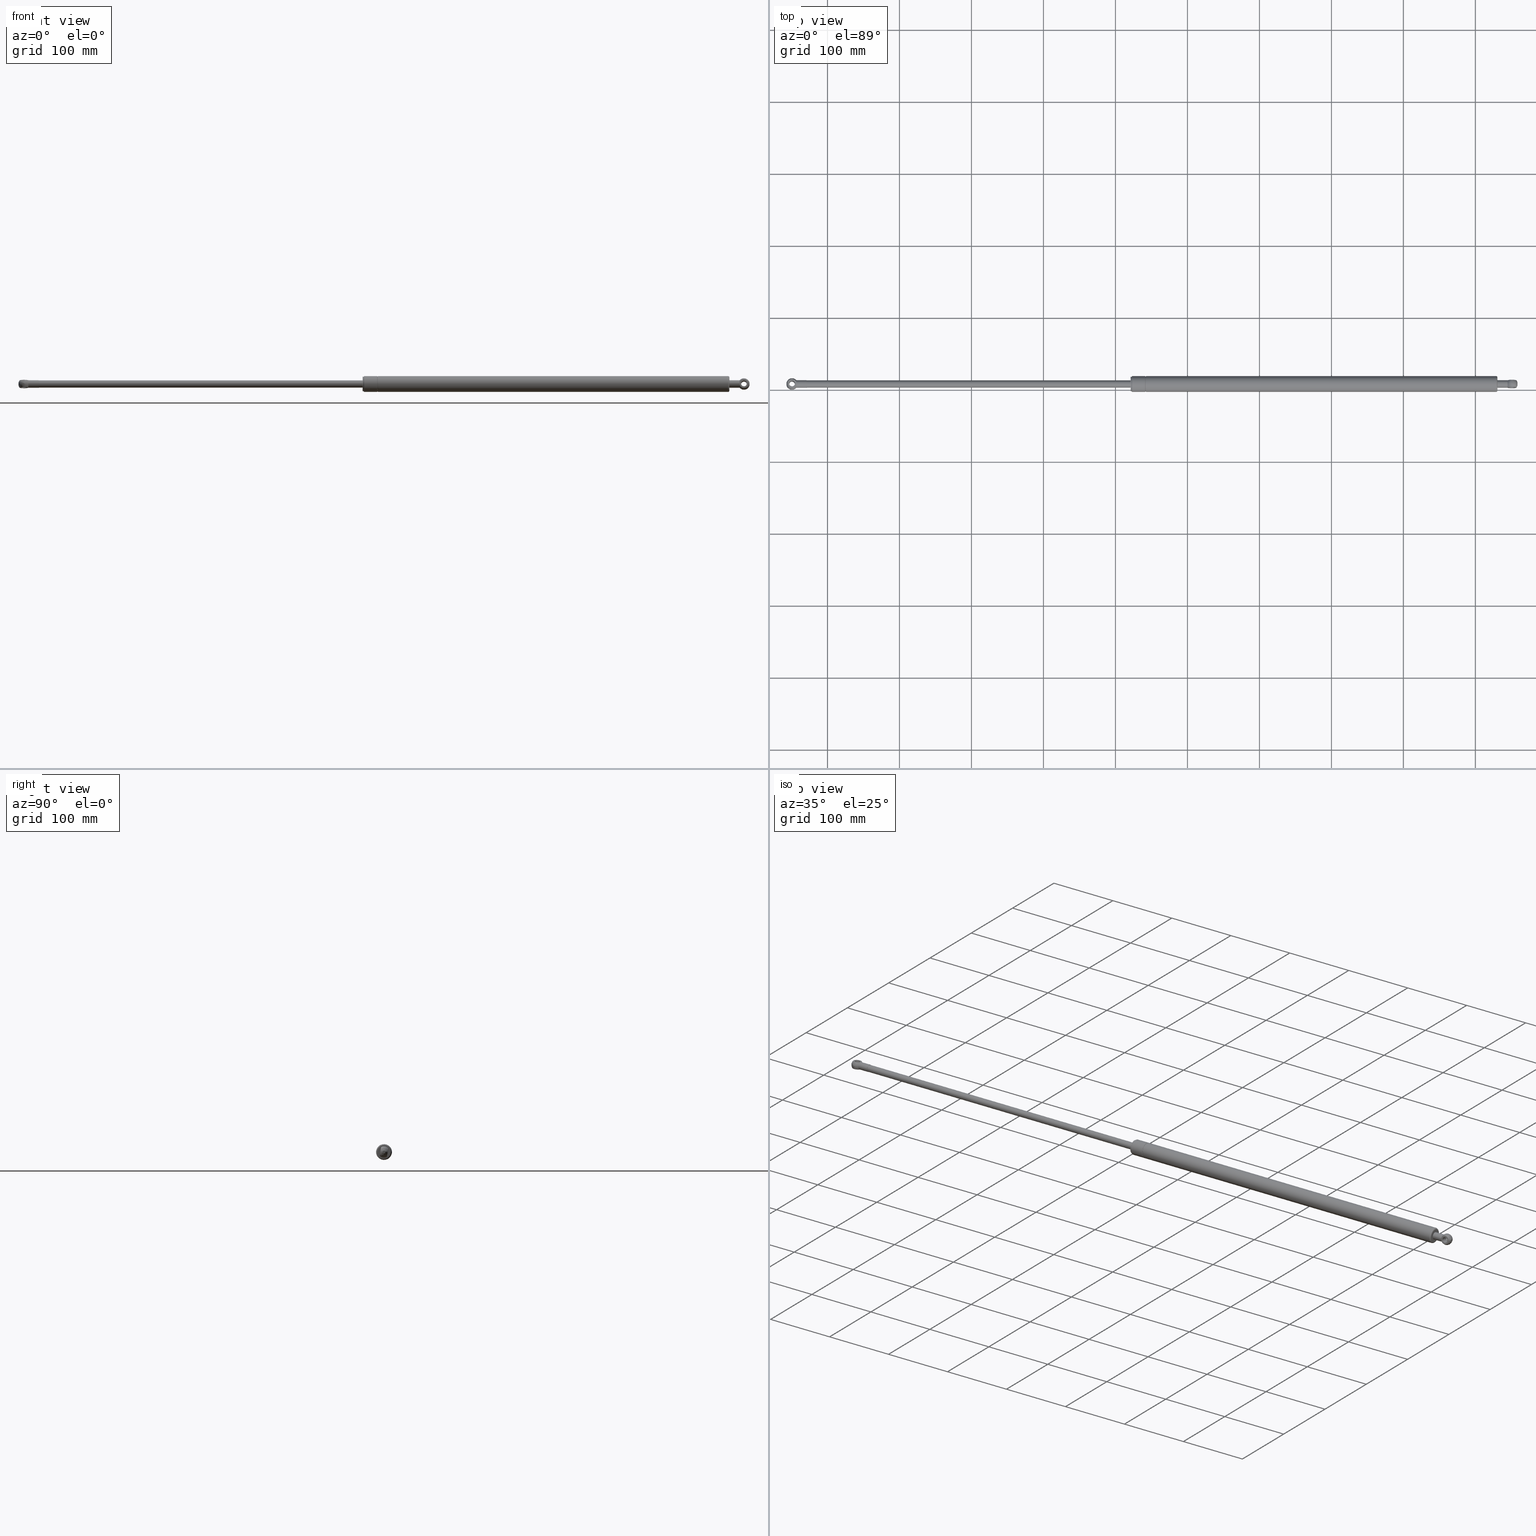
[diagram: canonical four-view strip — front | top / right | iso, engineering-drawing reading convention]
A machine part, canonical four-view strip (front | top / right | iso — engineering-drawing reading convention). The complete STEP part file that produces these views, byte-faithful:
ISO-10303-21;
HEADER;
/* Generated by software containing ST-Developer
 * from STEP Tools, Inc. (www.steptools.com) 
 */

FILE_DESCRIPTION(
/* description */ (''),
/* implementation_level */ '2;1');

FILE_NAME(
/* name */ '\\\\SYNOLOGYNAS\\web\\db2\\SB-1000-H\\\X2\B3C4BA74\X0\\\DR
_SB-1000-H.stp',
/* time_stamp */ '2023-11-29T16:10:18+09:00',
/* author */ ('user'),
/* organization */ (''),
/* preprocessor_version */ 'ST-DEVELOPER v15.6',
/* originating_system */ 'Autodesk Inventor 2015',
/* authorisation */ '');

FILE_SCHEMA (('AUTOMOTIVE_DESIGN { 1 0 10303 214 3 1 1 }'));
ENDSEC;

DATA;
#10=MECHANICAL_DESIGN_GEOMETRIC_PRESENTATION_REPRESENTATION('',(#42,#43,
#44,#45,#49,#47,#48,#46,#50),#857);
#11=ITEM_DEFINED_TRANSFORMATION($,$,#459,#539);
#12=ITEM_DEFINED_TRANSFORMATION($,$,#483,#540);
#13=ITEM_DEFINED_TRANSFORMATION($,$,#509,#541);
#14=ITEM_DEFINED_TRANSFORMATION($,$,#459,#542);
#15=ITEM_DEFINED_TRANSFORMATION($,$,#525,#543);
#16=(
REPRESENTATION_RELATIONSHIP($,$,#879,#883)
REPRESENTATION_RELATIONSHIP_WITH_TRANSFORMATION(#11)
SHAPE_REPRESENTATION_RELATIONSHIP()
);
#17=(
REPRESENTATION_RELATIONSHIP($,$,#880,#883)
REPRESENTATION_RELATIONSHIP_WITH_TRANSFORMATION(#12)
SHAPE_REPRESENTATION_RELATIONSHIP()
);
#18=(
REPRESENTATION_RELATIONSHIP($,$,#881,#883)
REPRESENTATION_RELATIONSHIP_WITH_TRANSFORMATION(#13)
SHAPE_REPRESENTATION_RELATIONSHIP()
);
#19=(
REPRESENTATION_RELATIONSHIP($,$,#879,#883)
REPRESENTATION_RELATIONSHIP_WITH_TRANSFORMATION(#14)
SHAPE_REPRESENTATION_RELATIONSHIP()
);
#20=(
REPRESENTATION_RELATIONSHIP($,$,#882,#883)
REPRESENTATION_RELATIONSHIP_WITH_TRANSFORMATION(#15)
SHAPE_REPRESENTATION_RELATIONSHIP()
);
#21=CONTEXT_DEPENDENT_SHAPE_REPRESENTATION(#16,#874);
#22=CONTEXT_DEPENDENT_SHAPE_REPRESENTATION(#17,#875);
#23=CONTEXT_DEPENDENT_SHAPE_REPRESENTATION(#18,#876);
#24=CONTEXT_DEPENDENT_SHAPE_REPRESENTATION(#19,#877);
#25=CONTEXT_DEPENDENT_SHAPE_REPRESENTATION(#20,#878);
#26=NEXT_ASSEMBLY_USAGE_OCCURRENCE('DR_SB-1000-H HOLE:2',$,$,#889,#885,
$);
#27=NEXT_ASSEMBLY_USAGE_OCCURRENCE('DR_SB-1000-BASE:1',$,$,#889,#886,$);
#28=NEXT_ASSEMBLY_USAGE_OCCURRENCE('DR_SB-1000-SUPPORT:1',$,$,#889,#887,
$);
#29=NEXT_ASSEMBLY_USAGE_OCCURRENCE('DR_SB-1000-H HOLE:1',$,$,#889,#885,
$);
#30=NEXT_ASSEMBLY_USAGE_OCCURRENCE('DR_SB-1000-RING:1',$,$,#889,#888,$);
#31=TOROIDAL_SURFACE('',#490,11.,0.5);
#32=TOROIDAL_SURFACE('',#493,11.,1.);
#33=TOROIDAL_SURFACE('',#498,9.00000000000001,2.);
#34=SHAPE_REPRESENTATION_RELATIONSHIP('SRR','None',#879,#38);
#35=SHAPE_REPRESENTATION_RELATIONSHIP('SRR','None',#880,#39);
#36=SHAPE_REPRESENTATION_RELATIONSHIP('SRR','None',#881,#40);
#37=SHAPE_REPRESENTATION_RELATIONSHIP('SRR','None',#882,#41);
#38=ADVANCED_BREP_SHAPE_REPRESENTATION($,(#51),#852);
#39=ADVANCED_BREP_SHAPE_REPRESENTATION($,(#52),#853);
#40=ADVANCED_BREP_SHAPE_REPRESENTATION($,(#53),#854);
#41=ADVANCED_BREP_SHAPE_REPRESENTATION($,(#54),#855);
#42=STYLED_ITEM('',(#908),#51);
#43=STYLED_ITEM('',(#909),#52);
#44=STYLED_ITEM('',(#911),#444);
#45=STYLED_ITEM('',(#911),#445);
#46=STYLED_ITEM('',(#911),#446);
#47=STYLED_ITEM('',(#910),#53);
#48=STYLED_ITEM('',(#909),#450);
#49=STYLED_ITEM('',(#909),#451);
#50=STYLED_ITEM('',(#910),#54);
#51=MANIFOLD_SOLID_BREP('\X2\C194B9ACB4DC\X0\1',#455);
#52=MANIFOLD_SOLID_BREP('\X2\C194B9ACB4DC\X0\1',#456);
#53=MANIFOLD_SOLID_BREP('\X2\C194B9ACB4DC\X0\1',#457);
#54=MANIFOLD_SOLID_BREP('\X2\C194B9ACB4DC\X0\1',#458);
#55=SPHERICAL_SURFACE('',#478,8.);
#56=B_SPLINE_CURVE_WITH_KNOTS('',3,(#727,#728,#729,#730,#731,#732),
 .UNSPECIFIED.,.F.,.F.,(4,2,4),(2.41667495412591,2.57738882372164,2.73810269331737),
 .UNSPECIFIED.);
#57=B_SPLINE_CURVE_WITH_KNOTS('',3,(#737,#738,#739,#740,#741,#742),
 .UNSPECIFIED.,.F.,.F.,(4,2,4),(0.698415738311486,0.859129607907215,1.01984347750294),
 .UNSPECIFIED.);
#58=PLANE('',#464);
#59=PLANE('',#477);
#60=PLANE('',#481);
#61=PLANE('',#482);
#62=PLANE('',#487);
#63=PLANE('',#501);
#64=PLANE('',#506);
#65=PLANE('',#508);
#66=PLANE('',#515);
#67=PLANE('',#516);
#68=PLANE('',#519);
#69=PLANE('',#524);
#70=PLANE('',#529);
#71=PLANE('',#533);
#72=PLANE('',#537);
#73=FACE_BOUND('',#159,.T.);
#74=FACE_BOUND('',#164,.T.);
#75=FACE_BOUND('',#166,.T.);
#76=FACE_BOUND('',#168,.T.);
#77=FACE_BOUND('',#169,.T.);
#78=FACE_BOUND('',#170,.T.);
#79=FACE_BOUND('',#172,.T.);
#80=FACE_BOUND('',#174,.T.);
#81=FACE_BOUND('',#176,.T.);
#82=FACE_BOUND('',#179,.T.);
#83=FACE_BOUND('',#181,.T.);
#84=FACE_BOUND('',#183,.T.);
#85=FACE_BOUND('',#185,.T.);
#86=FACE_BOUND('',#187,.T.);
#87=FACE_BOUND('',#189,.T.);
#88=FACE_BOUND('',#191,.T.);
#89=FACE_BOUND('',#193,.T.);
#90=FACE_BOUND('',#196,.T.);
#91=FACE_BOUND('',#198,.T.);
#92=FACE_BOUND('',#200,.T.);
#93=FACE_BOUND('',#202,.T.);
#94=FACE_BOUND('',#205,.T.);
#95=FACE_BOUND('',#208,.T.);
#96=FACE_BOUND('',#210,.T.);
#97=FACE_BOUND('',#212,.T.);
#98=FACE_BOUND('',#214,.T.);
#99=FACE_BOUND('',#216,.T.);
#100=FACE_BOUND('',#218,.T.);
#101=FACE_BOUND('',#220,.T.);
#102=FACE_BOUND('',#222,.T.);
#103=FACE_BOUND('',#224,.T.);
#104=CYLINDRICAL_SURFACE('',#462,3.567);
#105=CYLINDRICAL_SURFACE('',#466,6.2449979983984);
#106=CYLINDRICAL_SURFACE('',#468,6.2449979983984);
#107=CYLINDRICAL_SURFACE('',#470,5.25);
#108=CYLINDRICAL_SURFACE('',#474,4.);
#109=CYLINDRICAL_SURFACE('',#488,4.);
#110=CYLINDRICAL_SURFACE('',#496,10.);
#111=CYLINDRICAL_SURFACE('',#502,11.);
#112=CYLINDRICAL_SURFACE('',#503,9.);
#113=CYLINDRICAL_SURFACE('',#507,11.);
#114=CYLINDRICAL_SURFACE('',#513,4.);
#115=CYLINDRICAL_SURFACE('',#521,8.99999999999996);
#116=CYLINDRICAL_SURFACE('',#522,5.00000000000002);
#117=CYLINDRICAL_SURFACE('',#526,9.);
#118=CYLINDRICAL_SURFACE('',#531,6.5);
#119=CYLINDRICAL_SURFACE('',#535,5.);
#120=FACE_OUTER_BOUND('',#157,.T.);
#121=FACE_OUTER_BOUND('',#158,.T.);
#122=FACE_OUTER_BOUND('',#160,.T.);
#123=FACE_OUTER_BOUND('',#161,.T.);
#124=FACE_OUTER_BOUND('',#162,.T.);
#125=FACE_OUTER_BOUND('',#163,.T.);
#126=FACE_OUTER_BOUND('',#165,.T.);
#127=FACE_OUTER_BOUND('',#167,.T.);
#128=FACE_OUTER_BOUND('',#171,.T.);
#129=FACE_OUTER_BOUND('',#173,.T.);
#130=FACE_OUTER_BOUND('',#175,.T.);
#131=FACE_OUTER_BOUND('',#177,.T.);
#132=FACE_OUTER_BOUND('',#178,.T.);
#133=FACE_OUTER_BOUND('',#180,.T.);
#134=FACE_OUTER_BOUND('',#182,.T.);
#135=FACE_OUTER_BOUND('',#184,.T.);
#136=FACE_OUTER_BOUND('',#186,.T.);
#137=FACE_OUTER_BOUND('',#188,.T.);
#138=FACE_OUTER_BOUND('',#190,.T.);
#139=FACE_OUTER_BOUND('',#192,.T.);
#140=FACE_OUTER_BOUND('',#194,.T.);
#141=FACE_OUTER_BOUND('',#195,.T.);
#142=FACE_OUTER_BOUND('',#197,.T.);
#143=FACE_OUTER_BOUND('',#199,.T.);
#144=FACE_OUTER_BOUND('',#201,.T.);
#145=FACE_OUTER_BOUND('',#203,.T.);
#146=FACE_OUTER_BOUND('',#204,.T.);
#147=FACE_OUTER_BOUND('',#206,.T.);
#148=FACE_OUTER_BOUND('',#207,.T.);
#149=FACE_OUTER_BOUND('',#209,.T.);
#150=FACE_OUTER_BOUND('',#211,.T.);
#151=FACE_OUTER_BOUND('',#213,.T.);
#152=FACE_OUTER_BOUND('',#215,.T.);
#153=FACE_OUTER_BOUND('',#217,.T.);
#154=FACE_OUTER_BOUND('',#219,.T.);
#155=FACE_OUTER_BOUND('',#221,.T.);
#156=FACE_OUTER_BOUND('',#223,.T.);
#157=EDGE_LOOP('',(#336));
#158=EDGE_LOOP('',(#337));
#159=EDGE_LOOP('',(#338));
#160=EDGE_LOOP('',(#339));
#161=EDGE_LOOP('',(#340,#341));
#162=EDGE_LOOP('',(#342,#343));
#163=EDGE_LOOP('',(#344,#345,#346,#347));
#164=EDGE_LOOP('',(#348));
#165=EDGE_LOOP('',(#349));
#166=EDGE_LOOP('',(#350));
#167=EDGE_LOOP('',(#351));
#168=EDGE_LOOP('',(#352));
#169=EDGE_LOOP('',(#353));
#170=EDGE_LOOP('',(#354,#355,#356,#357));
#171=EDGE_LOOP('',(#358,#359));
#172=EDGE_LOOP('',(#360));
#173=EDGE_LOOP('',(#361,#362));
#174=EDGE_LOOP('',(#363));
#175=EDGE_LOOP('',(#364));
#176=EDGE_LOOP('',(#365));
#177=EDGE_LOOP('',(#366));
#178=EDGE_LOOP('',(#367));
#179=EDGE_LOOP('',(#368));
#180=EDGE_LOOP('',(#369));
#181=EDGE_LOOP('',(#370));
#182=EDGE_LOOP('',(#371));
#183=EDGE_LOOP('',(#372));
#184=EDGE_LOOP('',(#373));
#185=EDGE_LOOP('',(#374));
#186=EDGE_LOOP('',(#375));
#187=EDGE_LOOP('',(#376));
#188=EDGE_LOOP('',(#377));
#189=EDGE_LOOP('',(#378));
#190=EDGE_LOOP('',(#379));
#191=EDGE_LOOP('',(#380));
#192=EDGE_LOOP('',(#381));
#193=EDGE_LOOP('',(#382));
#194=EDGE_LOOP('',(#383));
#195=EDGE_LOOP('',(#384));
#196=EDGE_LOOP('',(#385));
#197=EDGE_LOOP('',(#386));
#198=EDGE_LOOP('',(#387));
#199=EDGE_LOOP('',(#388));
#200=EDGE_LOOP('',(#389));
#201=EDGE_LOOP('',(#390));
#202=EDGE_LOOP('',(#391));
#203=EDGE_LOOP('',(#392));
#204=EDGE_LOOP('',(#393));
#205=EDGE_LOOP('',(#394));
#206=EDGE_LOOP('',(#395));
#207=EDGE_LOOP('',(#396));
#208=EDGE_LOOP('',(#397));
#209=EDGE_LOOP('',(#398));
#210=EDGE_LOOP('',(#399));
#211=EDGE_LOOP('',(#400));
#212=EDGE_LOOP('',(#401));
#213=EDGE_LOOP('',(#402));
#214=EDGE_LOOP('',(#403));
#215=EDGE_LOOP('',(#404));
#216=EDGE_LOOP('',(#405));
#217=EDGE_LOOP('',(#406));
#218=EDGE_LOOP('',(#407));
#219=EDGE_LOOP('',(#408));
#220=EDGE_LOOP('',(#409));
#221=EDGE_LOOP('',(#410));
#222=EDGE_LOOP('',(#411));
#223=EDGE_LOOP('',(#412));
#224=EDGE_LOOP('',(#413));
#225=CIRCLE('',#461,3.567);
#226=CIRCLE('',#463,3.567);
#227=CIRCLE('',#465,1.98431348329845);
#228=CIRCLE('',#467,6.2449979983984);
#229=CIRCLE('',#469,6.2449979983984);
#230=CIRCLE('',#471,5.25);
#231=CIRCLE('',#472,5.25);
#232=CIRCLE('',#473,5.25);
#233=CIRCLE('',#475,4.);
#234=CIRCLE('',#476,4.);
#235=CIRCLE('',#479,6.2449979983984);
#236=CIRCLE('',#480,6.2449979983984);
#237=CIRCLE('',#485,3.);
#238=CIRCLE('',#486,4.);
#239=CIRCLE('',#489,4.);
#240=CIRCLE('',#491,11.);
#241=CIRCLE('',#492,11.);
#242=CIRCLE('',#494,11.);
#243=CIRCLE('',#495,10.);
#244=CIRCLE('',#497,10.);
#245=CIRCLE('',#499,9.00000000000001);
#246=CIRCLE('',#500,11.);
#247=CIRCLE('',#504,9.);
#248=CIRCLE('',#505,9.);
#249=CIRCLE('',#511,4.);
#250=CIRCLE('',#512,3.);
#251=CIRCLE('',#514,4.);
#252=CIRCLE('',#517,8.99999999999988);
#253=CIRCLE('',#518,5.);
#254=CIRCLE('',#520,9.00000000000005);
#255=CIRCLE('',#523,5.00000000000003);
#256=CIRCLE('',#527,9.);
#257=CIRCLE('',#528,9.);
#258=CIRCLE('',#530,6.5);
#259=CIRCLE('',#532,6.5);
#260=CIRCLE('',#534,5.);
#261=CIRCLE('',#536,5.);
#262=VERTEX_POINT('',#716);
#263=VERTEX_POINT('',#719);
#264=VERTEX_POINT('',#722);
#265=VERTEX_POINT('',#725);
#266=VERTEX_POINT('',#726);
#267=VERTEX_POINT('',#735);
#268=VERTEX_POINT('',#736);
#269=VERTEX_POINT('',#747);
#270=VERTEX_POINT('',#750);
#271=VERTEX_POINT('',#752);
#272=VERTEX_POINT('',#762);
#273=VERTEX_POINT('',#764);
#274=VERTEX_POINT('',#768);
#275=VERTEX_POINT('',#771);
#276=VERTEX_POINT('',#773);
#277=VERTEX_POINT('',#776);
#278=VERTEX_POINT('',#778);
#279=VERTEX_POINT('',#781);
#280=VERTEX_POINT('',#784);
#281=VERTEX_POINT('',#786);
#282=VERTEX_POINT('',#791);
#283=VERTEX_POINT('',#793);
#284=VERTEX_POINT('',#800);
#285=VERTEX_POINT('',#802);
#286=VERTEX_POINT('',#805);
#287=VERTEX_POINT('',#809);
#288=VERTEX_POINT('',#811);
#289=VERTEX_POINT('',#814);
#290=VERTEX_POINT('',#818);
#291=VERTEX_POINT('',#823);
#292=VERTEX_POINT('',#825);
#293=VERTEX_POINT('',#828);
#294=VERTEX_POINT('',#831);
#295=VERTEX_POINT('',#834);
#296=VERTEX_POINT('',#837);
#297=EDGE_CURVE('',#262,#262,#225,.T.);
#298=EDGE_CURVE('',#263,#263,#226,.T.);
#299=EDGE_CURVE('',#264,#264,#227,.T.);
#300=EDGE_CURVE('',#265,#266,#56,.T.);
#301=EDGE_CURVE('',#265,#266,#228,.T.);
#302=EDGE_CURVE('',#267,#268,#57,.T.);
#303=EDGE_CURVE('',#267,#268,#229,.T.);
#304=EDGE_CURVE('',#267,#266,#230,.T.);
#305=EDGE_CURVE('',#265,#268,#231,.T.);
#306=EDGE_CURVE('',#269,#269,#232,.T.);
#307=EDGE_CURVE('',#270,#270,#233,.T.);
#308=EDGE_CURVE('',#271,#271,#234,.T.);
#309=EDGE_CURVE('',#266,#265,#235,.T.);
#310=EDGE_CURVE('',#268,#267,#236,.T.);
#311=EDGE_CURVE('',#272,#272,#237,.T.);
#312=EDGE_CURVE('',#273,#273,#238,.T.);
#313=EDGE_CURVE('',#274,#274,#239,.T.);
#314=EDGE_CURVE('',#275,#275,#240,.T.);
#315=EDGE_CURVE('',#276,#276,#241,.T.);
#316=EDGE_CURVE('',#277,#277,#242,.T.);
#317=EDGE_CURVE('',#278,#278,#243,.T.);
#318=EDGE_CURVE('',#279,#279,#244,.T.);
#319=EDGE_CURVE('',#280,#280,#245,.T.);
#320=EDGE_CURVE('',#281,#281,#246,.T.);
#321=EDGE_CURVE('',#282,#282,#247,.T.);
#322=EDGE_CURVE('',#283,#283,#248,.T.);
#323=EDGE_CURVE('',#284,#284,#249,.T.);
#324=EDGE_CURVE('',#285,#285,#250,.T.);
#325=EDGE_CURVE('',#286,#286,#251,.T.);
#326=EDGE_CURVE('',#287,#287,#252,.T.);
#327=EDGE_CURVE('',#288,#288,#253,.T.);
#328=EDGE_CURVE('',#289,#289,#254,.T.);
#329=EDGE_CURVE('',#290,#290,#255,.T.);
#330=EDGE_CURVE('',#291,#291,#256,.T.);
#331=EDGE_CURVE('',#292,#292,#257,.T.);
#332=EDGE_CURVE('',#293,#293,#258,.T.);
#333=EDGE_CURVE('',#294,#294,#259,.T.);
#334=EDGE_CURVE('',#295,#295,#260,.T.);
#335=EDGE_CURVE('',#296,#296,#261,.T.);
#336=ORIENTED_EDGE('',*,*,#297,.T.);
#337=ORIENTED_EDGE('',*,*,#298,.F.);
#338=ORIENTED_EDGE('',*,*,#297,.F.);
#339=ORIENTED_EDGE('',*,*,#299,.F.);
#340=ORIENTED_EDGE('',*,*,#300,.F.);
#341=ORIENTED_EDGE('',*,*,#301,.T.);
#342=ORIENTED_EDGE('',*,*,#302,.F.);
#343=ORIENTED_EDGE('',*,*,#303,.T.);
#344=ORIENTED_EDGE('',*,*,#300,.T.);
#345=ORIENTED_EDGE('',*,*,#304,.F.);
#346=ORIENTED_EDGE('',*,*,#302,.T.);
#347=ORIENTED_EDGE('',*,*,#305,.F.);
#348=ORIENTED_EDGE('',*,*,#306,.F.);
#349=ORIENTED_EDGE('',*,*,#307,.F.);
#350=ORIENTED_EDGE('',*,*,#308,.F.);
#351=ORIENTED_EDGE('',*,*,#306,.T.);
#352=ORIENTED_EDGE('',*,*,#298,.T.);
#353=ORIENTED_EDGE('',*,*,#299,.T.);
#354=ORIENTED_EDGE('',*,*,#304,.T.);
#355=ORIENTED_EDGE('',*,*,#309,.T.);
#356=ORIENTED_EDGE('',*,*,#305,.T.);
#357=ORIENTED_EDGE('',*,*,#310,.T.);
#358=ORIENTED_EDGE('',*,*,#309,.F.);
#359=ORIENTED_EDGE('',*,*,#301,.F.);
#360=ORIENTED_EDGE('',*,*,#307,.T.);
#361=ORIENTED_EDGE('',*,*,#310,.F.);
#362=ORIENTED_EDGE('',*,*,#303,.F.);
#363=ORIENTED_EDGE('',*,*,#308,.T.);
#364=ORIENTED_EDGE('',*,*,#311,.T.);
#365=ORIENTED_EDGE('',*,*,#312,.T.);
#366=ORIENTED_EDGE('',*,*,#311,.F.);
#367=ORIENTED_EDGE('',*,*,#313,.F.);
#368=ORIENTED_EDGE('',*,*,#312,.F.);
#369=ORIENTED_EDGE('',*,*,#314,.T.);
#370=ORIENTED_EDGE('',*,*,#315,.F.);
#371=ORIENTED_EDGE('',*,*,#316,.T.);
#372=ORIENTED_EDGE('',*,*,#317,.T.);
#373=ORIENTED_EDGE('',*,*,#318,.F.);
#374=ORIENTED_EDGE('',*,*,#317,.F.);
#375=ORIENTED_EDGE('',*,*,#319,.T.);
#376=ORIENTED_EDGE('',*,*,#320,.T.);
#377=ORIENTED_EDGE('',*,*,#319,.F.);
#378=ORIENTED_EDGE('',*,*,#313,.T.);
#379=ORIENTED_EDGE('',*,*,#314,.F.);
#380=ORIENTED_EDGE('',*,*,#320,.F.);
#381=ORIENTED_EDGE('',*,*,#321,.F.);
#382=ORIENTED_EDGE('',*,*,#322,.F.);
#383=ORIENTED_EDGE('',*,*,#322,.T.);
#384=ORIENTED_EDGE('',*,*,#316,.F.);
#385=ORIENTED_EDGE('',*,*,#315,.T.);
#386=ORIENTED_EDGE('',*,*,#318,.T.);
#387=ORIENTED_EDGE('',*,*,#321,.T.);
#388=ORIENTED_EDGE('',*,*,#323,.T.);
#389=ORIENTED_EDGE('',*,*,#324,.T.);
#390=ORIENTED_EDGE('',*,*,#325,.F.);
#391=ORIENTED_EDGE('',*,*,#323,.F.);
#392=ORIENTED_EDGE('',*,*,#324,.F.);
#393=ORIENTED_EDGE('',*,*,#326,.T.);
#394=ORIENTED_EDGE('',*,*,#327,.F.);
#395=ORIENTED_EDGE('',*,*,#328,.F.);
#396=ORIENTED_EDGE('',*,*,#326,.F.);
#397=ORIENTED_EDGE('',*,*,#328,.T.);
#398=ORIENTED_EDGE('',*,*,#329,.F.);
#399=ORIENTED_EDGE('',*,*,#327,.T.);
#400=ORIENTED_EDGE('',*,*,#329,.T.);
#401=ORIENTED_EDGE('',*,*,#325,.T.);
#402=ORIENTED_EDGE('',*,*,#330,.F.);
#403=ORIENTED_EDGE('',*,*,#331,.T.);
#404=ORIENTED_EDGE('',*,*,#330,.T.);
#405=ORIENTED_EDGE('',*,*,#332,.F.);
#406=ORIENTED_EDGE('',*,*,#333,.F.);
#407=ORIENTED_EDGE('',*,*,#332,.T.);
#408=ORIENTED_EDGE('',*,*,#333,.T.);
#409=ORIENTED_EDGE('',*,*,#334,.F.);
#410=ORIENTED_EDGE('',*,*,#335,.F.);
#411=ORIENTED_EDGE('',*,*,#334,.T.);
#412=ORIENTED_EDGE('',*,*,#331,.F.);
#413=ORIENTED_EDGE('',*,*,#335,.T.);
#414=CONICAL_SURFACE('',#460,1.7835,59.);
#415=CONICAL_SURFACE('',#484,3.5,44.9999999999996);
#416=CONICAL_SURFACE('',#510,3.5,45.);
#417=ADVANCED_FACE('',(#120),#414,.F.);
#418=ADVANCED_FACE('',(#121,#73),#104,.F.);
#419=ADVANCED_FACE('',(#122),#58,.F.);
#420=ADVANCED_FACE('',(#123),#105,.F.);
#421=ADVANCED_FACE('',(#124),#106,.F.);
#422=ADVANCED_FACE('',(#125,#74),#107,.T.);
#423=ADVANCED_FACE('',(#126,#75),#108,.F.);
#424=ADVANCED_FACE('',(#127,#76),#59,.F.);
#425=ADVANCED_FACE('',(#77,#78),#55,.T.);
#426=ADVANCED_FACE('',(#128,#79),#60,.F.);
#427=ADVANCED_FACE('',(#129,#80),#61,.F.);
#428=ADVANCED_FACE('',(#130,#81),#415,.T.);
#429=ADVANCED_FACE('',(#131),#62,.T.);
#430=ADVANCED_FACE('',(#132,#82),#109,.T.);
#431=ADVANCED_FACE('',(#133,#83),#31,.F.);
#432=ADVANCED_FACE('',(#134,#84),#32,.F.);
#433=ADVANCED_FACE('',(#135,#85),#110,.T.);
#434=ADVANCED_FACE('',(#136,#86),#33,.T.);
#435=ADVANCED_FACE('',(#137,#87),#63,.T.);
#436=ADVANCED_FACE('',(#138,#88),#111,.T.);
#437=ADVANCED_FACE('',(#139,#89),#112,.F.);
#438=ADVANCED_FACE('',(#140),#64,.T.);
#439=ADVANCED_FACE('',(#141,#90),#113,.T.);
#440=ADVANCED_FACE('',(#142,#91),#65,.T.);
#441=ADVANCED_FACE('',(#143,#92),#416,.T.);
#442=ADVANCED_FACE('',(#144,#93),#114,.T.);
#443=ADVANCED_FACE('',(#145),#66,.F.);
#444=ADVANCED_FACE('',(#146,#94),#67,.T.);
#445=ADVANCED_FACE('',(#147),#68,.T.);
#446=ADVANCED_FACE('',(#148,#95),#115,.T.);
#447=ADVANCED_FACE('',(#149,#96),#116,.T.);
#448=ADVANCED_FACE('',(#150,#97),#69,.T.);
#449=ADVANCED_FACE('',(#151,#98),#117,.T.);
#450=ADVANCED_FACE('',(#152,#99),#70,.T.);
#451=ADVANCED_FACE('',(#153,#100),#118,.F.);
#452=ADVANCED_FACE('',(#154,#101),#71,.T.);
#453=ADVANCED_FACE('',(#155,#102),#119,.F.);
#454=ADVANCED_FACE('',(#156,#103),#72,.T.);
#455=CLOSED_SHELL('',(#417,#418,#419,#420,#421,#422,#423,#424,#425,#426,
#427));
#456=CLOSED_SHELL('',(#428,#429,#430,#431,#432,#433,#434,#435,#436,#437,
#438,#439,#440));
#457=CLOSED_SHELL('',(#441,#442,#443,#444,#445,#446,#447,#448));
#458=CLOSED_SHELL('',(#449,#450,#451,#452,#453,#454));
#459=AXIS2_PLACEMENT_3D('placement',#714,#544,#545);
#460=AXIS2_PLACEMENT_3D('',#715,#546,#547);
#461=AXIS2_PLACEMENT_3D('',#717,#548,#549);
#462=AXIS2_PLACEMENT_3D('',#718,#550,#551);
#463=AXIS2_PLACEMENT_3D('',#720,#552,#553);
#464=AXIS2_PLACEMENT_3D('',#721,#554,#555);
#465=AXIS2_PLACEMENT_3D('',#723,#556,#557);
#466=AXIS2_PLACEMENT_3D('',#724,#558,#559);
#467=AXIS2_PLACEMENT_3D('',#733,#560,#561);
#468=AXIS2_PLACEMENT_3D('',#734,#562,#563);
#469=AXIS2_PLACEMENT_3D('',#743,#564,#565);
#470=AXIS2_PLACEMENT_3D('',#744,#566,#567);
#471=AXIS2_PLACEMENT_3D('',#745,#568,#569);
#472=AXIS2_PLACEMENT_3D('',#746,#570,#571);
#473=AXIS2_PLACEMENT_3D('',#748,#572,#573);
#474=AXIS2_PLACEMENT_3D('',#749,#574,#575);
#475=AXIS2_PLACEMENT_3D('',#751,#576,#577);
#476=AXIS2_PLACEMENT_3D('',#753,#578,#579);
#477=AXIS2_PLACEMENT_3D('',#754,#580,#581);
#478=AXIS2_PLACEMENT_3D('',#755,#582,#583);
#479=AXIS2_PLACEMENT_3D('',#756,#584,#585);
#480=AXIS2_PLACEMENT_3D('',#757,#586,#587);
#481=AXIS2_PLACEMENT_3D('',#758,#588,#589);
#482=AXIS2_PLACEMENT_3D('',#759,#590,#591);
#483=AXIS2_PLACEMENT_3D('placement',#760,#592,#593);
#484=AXIS2_PLACEMENT_3D('',#761,#594,#595);
#485=AXIS2_PLACEMENT_3D('',#763,#596,#597);
#486=AXIS2_PLACEMENT_3D('',#765,#598,#599);
#487=AXIS2_PLACEMENT_3D('',#766,#600,#601);
#488=AXIS2_PLACEMENT_3D('',#767,#602,#603);
#489=AXIS2_PLACEMENT_3D('',#769,#604,#605);
#490=AXIS2_PLACEMENT_3D('',#770,#606,#607);
#491=AXIS2_PLACEMENT_3D('',#772,#608,#609);
#492=AXIS2_PLACEMENT_3D('',#774,#610,#611);
#493=AXIS2_PLACEMENT_3D('',#775,#612,#613);
#494=AXIS2_PLACEMENT_3D('',#777,#614,#615);
#495=AXIS2_PLACEMENT_3D('',#779,#616,#617);
#496=AXIS2_PLACEMENT_3D('',#780,#618,#619);
#497=AXIS2_PLACEMENT_3D('',#782,#620,#621);
#498=AXIS2_PLACEMENT_3D('',#783,#622,#623);
#499=AXIS2_PLACEMENT_3D('',#785,#624,#625);
#500=AXIS2_PLACEMENT_3D('',#787,#626,#627);
#501=AXIS2_PLACEMENT_3D('',#788,#628,#629);
#502=AXIS2_PLACEMENT_3D('',#789,#630,#631);
#503=AXIS2_PLACEMENT_3D('',#790,#632,#633);
#504=AXIS2_PLACEMENT_3D('',#792,#634,#635);
#505=AXIS2_PLACEMENT_3D('',#794,#636,#637);
#506=AXIS2_PLACEMENT_3D('',#795,#638,#639);
#507=AXIS2_PLACEMENT_3D('',#796,#640,#641);
#508=AXIS2_PLACEMENT_3D('',#797,#642,#643);
#509=AXIS2_PLACEMENT_3D('placement',#798,#644,#645);
#510=AXIS2_PLACEMENT_3D('',#799,#646,#647);
#511=AXIS2_PLACEMENT_3D('',#801,#648,#649);
#512=AXIS2_PLACEMENT_3D('',#803,#650,#651);
#513=AXIS2_PLACEMENT_3D('',#804,#652,#653);
#514=AXIS2_PLACEMENT_3D('',#806,#654,#655);
#515=AXIS2_PLACEMENT_3D('',#807,#656,#657);
#516=AXIS2_PLACEMENT_3D('',#808,#658,#659);
#517=AXIS2_PLACEMENT_3D('',#810,#660,#661);
#518=AXIS2_PLACEMENT_3D('',#812,#662,#663);
#519=AXIS2_PLACEMENT_3D('',#813,#664,#665);
#520=AXIS2_PLACEMENT_3D('',#815,#666,#667);
#521=AXIS2_PLACEMENT_3D('',#816,#668,#669);
#522=AXIS2_PLACEMENT_3D('',#817,#670,#671);
#523=AXIS2_PLACEMENT_3D('',#819,#672,#673);
#524=AXIS2_PLACEMENT_3D('',#820,#674,#675);
#525=AXIS2_PLACEMENT_3D('placement',#821,#676,#677);
#526=AXIS2_PLACEMENT_3D('',#822,#678,#679);
#527=AXIS2_PLACEMENT_3D('',#824,#680,#681);
#528=AXIS2_PLACEMENT_3D('',#826,#682,#683);
#529=AXIS2_PLACEMENT_3D('',#827,#684,#685);
#530=AXIS2_PLACEMENT_3D('',#829,#686,#687);
#531=AXIS2_PLACEMENT_3D('',#830,#688,#689);
#532=AXIS2_PLACEMENT_3D('',#832,#690,#691);
#533=AXIS2_PLACEMENT_3D('',#833,#692,#693);
#534=AXIS2_PLACEMENT_3D('',#835,#694,#695);
#535=AXIS2_PLACEMENT_3D('',#836,#696,#697);
#536=AXIS2_PLACEMENT_3D('',#838,#698,#699);
#537=AXIS2_PLACEMENT_3D('',#839,#700,#701);
#538=AXIS2_PLACEMENT_3D('placement',#840,#702,#703);
#539=AXIS2_PLACEMENT_3D('',#841,#704,#705);
#540=AXIS2_PLACEMENT_3D('',#842,#706,#707);
#541=AXIS2_PLACEMENT_3D('',#843,#708,#709);
#542=AXIS2_PLACEMENT_3D('',#844,#710,#711);
#543=AXIS2_PLACEMENT_3D('',#845,#712,#713);
#544=DIRECTION('axis',(0.,0.,1.));
#545=DIRECTION('refdir',(1.,0.,0.));
#546=DIRECTION('center_axis',(0.,-1.,0.));
#547=DIRECTION('ref_axis',(1.,0.,0.));
#548=DIRECTION('center_axis',(0.,-1.,0.));
#549=DIRECTION('ref_axis',(1.,0.,0.));
#550=DIRECTION('center_axis',(0.,-1.,0.));
#551=DIRECTION('ref_axis',(1.,0.,0.));
#552=DIRECTION('center_axis',(0.,1.,0.));
#553=DIRECTION('ref_axis',(1.,0.,0.));
#554=DIRECTION('center_axis',(0.,-1.,0.));
#555=DIRECTION('ref_axis',(0.,0.,-1.));
#556=DIRECTION('center_axis',(0.,-1.,0.));
#557=DIRECTION('ref_axis',(0.,0.,1.));
#558=DIRECTION('center_axis',(1.,0.,0.));
#559=DIRECTION('ref_axis',(0.,0.966589298406967,-0.256330115681182));
#560=DIRECTION('center_axis',(-1.,0.,0.));
#561=DIRECTION('ref_axis',(0.,0.,-1.));
#562=DIRECTION('center_axis',(1.,0.,0.));
#563=DIRECTION('ref_axis',(0.,0.966589298406967,-0.256330115681182));
#564=DIRECTION('center_axis',(1.,0.,0.));
#565=DIRECTION('ref_axis',(0.,0.,1.));
#566=DIRECTION('center_axis',(0.,1.,0.));
#567=DIRECTION('ref_axis',(1.,0.,0.));
#568=DIRECTION('center_axis',(0.,1.,0.));
#569=DIRECTION('ref_axis',(1.,-2.11471052309554E-16,0.));
#570=DIRECTION('center_axis',(0.,1.,0.));
#571=DIRECTION('ref_axis',(1.,-2.11471052309554E-16,0.));
#572=DIRECTION('center_axis',(0.,-1.,0.));
#573=DIRECTION('ref_axis',(1.,0.,0.));
#574=DIRECTION('center_axis',(-1.,0.,0.));
#575=DIRECTION('ref_axis',(0.,-1.,0.));
#576=DIRECTION('center_axis',(-1.,0.,0.));
#577=DIRECTION('ref_axis',(0.,-1.,0.));
#578=DIRECTION('center_axis',(1.,0.,0.));
#579=DIRECTION('ref_axis',(0.,-1.,0.));
#580=DIRECTION('center_axis',(0.,1.,0.));
#581=DIRECTION('ref_axis',(0.,0.,1.));
#582=DIRECTION('center_axis',(6.12323399573677E-17,0.,1.));
#583=DIRECTION('ref_axis',(1.,0.,0.));
#584=DIRECTION('center_axis',(-1.,0.,0.));
#585=DIRECTION('ref_axis',(0.,0.,-1.));
#586=DIRECTION('center_axis',(1.,0.,0.));
#587=DIRECTION('ref_axis',(0.,0.,1.));
#588=DIRECTION('center_axis',(-1.,0.,0.));
#589=DIRECTION('ref_axis',(0.,0.,1.));
#590=DIRECTION('center_axis',(1.,0.,0.));
#591=DIRECTION('ref_axis',(0.,0.,-1.));
#592=DIRECTION('axis',(0.,0.,1.));
#593=DIRECTION('refdir',(1.,0.,0.));
#594=DIRECTION('center_axis',(-1.,0.,1.18952466924123E-16));
#595=DIRECTION('ref_axis',(-5.09796286817672E-17,0.,-1.));
#596=DIRECTION('center_axis',(-1.,0.,1.18952466924123E-16));
#597=DIRECTION('ref_axis',(-1.18952466924123E-16,0.,-1.));
#598=DIRECTION('center_axis',(1.,0.,-1.18952466924123E-16));
#599=DIRECTION('ref_axis',(0.,0.,-1.));
#600=DIRECTION('center_axis',(1.,0.,-1.18952466924123E-16));
#601=DIRECTION('ref_axis',(0.,0.,-1.));
#602=DIRECTION('center_axis',(-1.,0.,1.18952466924123E-16));
#603=DIRECTION('ref_axis',(0.,0.,1.));
#604=DIRECTION('center_axis',(-1.,0.,0.));
#605=DIRECTION('ref_axis',(0.,0.,1.));
#606=DIRECTION('center_axis',(-1.,0.,0.));
#607=DIRECTION('ref_axis',(0.,0.,1.));
#608=DIRECTION('center_axis',(-1.,0.,0.));
#609=DIRECTION('ref_axis',(0.,0.,1.));
#610=DIRECTION('center_axis',(-1.,0.,0.));
#611=DIRECTION('ref_axis',(0.,0.,1.));
#612=DIRECTION('center_axis',(-1.,0.,0.));
#613=DIRECTION('ref_axis',(0.,0.,1.));
#614=DIRECTION('center_axis',(-1.,0.,0.));
#615=DIRECTION('ref_axis',(0.,0.,1.));
#616=DIRECTION('center_axis',(1.,0.,0.));
#617=DIRECTION('ref_axis',(0.,1.22464679914735E-16,-1.));
#618=DIRECTION('center_axis',(-1.,0.,0.));
#619=DIRECTION('ref_axis',(0.,0.,1.));
#620=DIRECTION('center_axis',(-1.,0.,0.));
#621=DIRECTION('ref_axis',(0.,0.,1.));
#622=DIRECTION('center_axis',(-1.,0.,0.));
#623=DIRECTION('ref_axis',(0.,0.,1.));
#624=DIRECTION('center_axis',(-1.,0.,0.));
#625=DIRECTION('ref_axis',(0.,1.22464679914735E-16,-1.));
#626=DIRECTION('center_axis',(1.,0.,0.));
#627=DIRECTION('ref_axis',(0.,1.22464679914735E-16,-1.));
#628=DIRECTION('center_axis',(1.,0.,0.));
#629=DIRECTION('ref_axis',(0.,0.,-1.));
#630=DIRECTION('center_axis',(-1.,0.,0.));
#631=DIRECTION('ref_axis',(0.,0.,1.));
#632=DIRECTION('center_axis',(-1.,0.,0.));
#633=DIRECTION('ref_axis',(0.,-1.,0.));
#634=DIRECTION('center_axis',(1.,0.,0.));
#635=DIRECTION('ref_axis',(0.,-1.,0.));
#636=DIRECTION('center_axis',(-1.,0.,0.));
#637=DIRECTION('ref_axis',(0.,-1.,0.));
#638=DIRECTION('center_axis',(-1.,0.,0.));
#639=DIRECTION('ref_axis',(0.,-1.,0.));
#640=DIRECTION('center_axis',(-1.,0.,0.));
#641=DIRECTION('ref_axis',(0.,0.,1.));
#642=DIRECTION('center_axis',(-1.,0.,0.));
#643=DIRECTION('ref_axis',(0.,0.,1.));
#644=DIRECTION('axis',(0.,0.,1.));
#645=DIRECTION('refdir',(1.,0.,0.));
#646=DIRECTION('center_axis',(1.,0.,0.));
#647=DIRECTION('ref_axis',(0.,0.,-1.));
#648=DIRECTION('center_axis',(-1.,0.,0.));
#649=DIRECTION('ref_axis',(0.,0.,-1.));
#650=DIRECTION('center_axis',(1.,0.,0.));
#651=DIRECTION('ref_axis',(0.,0.,-1.));
#652=DIRECTION('center_axis',(-1.,0.,0.));
#653=DIRECTION('ref_axis',(0.,0.,1.));
#654=DIRECTION('center_axis',(1.,0.,0.));
#655=DIRECTION('ref_axis',(0.,0.,1.));
#656=DIRECTION('center_axis',(1.,0.,0.));
#657=DIRECTION('ref_axis',(0.,0.,-1.));
#658=DIRECTION('center_axis',(-1.,0.,1.79399744698332E-14));
#659=DIRECTION('ref_axis',(1.70530256582424E-14,0.,1.));
#660=DIRECTION('center_axis',(-1.,0.,1.79399744698332E-14));
#661=DIRECTION('ref_axis',(1.788692650785E-14,0.,1.));
#662=DIRECTION('center_axis',(-1.,0.,0.));
#663=DIRECTION('ref_axis',(0.,0.,1.));
#664=DIRECTION('center_axis',(1.,0.,-1.79399744698332E-14));
#665=DIRECTION('ref_axis',(-1.70530256582424E-14,0.,-1.));
#666=DIRECTION('center_axis',(-1.,0.,1.79399744698332E-14));
#667=DIRECTION('ref_axis',(1.788692650785E-14,0.,1.));
#668=DIRECTION('center_axis',(-1.,0.,1.79399744698332E-14));
#669=DIRECTION('ref_axis',(1.788692650785E-14,0.,1.));
#670=DIRECTION('center_axis',(-1.,0.,0.));
#671=DIRECTION('ref_axis',(0.,0.,1.));
#672=DIRECTION('center_axis',(-1.,0.,0.));
#673=DIRECTION('ref_axis',(0.,0.,1.));
#674=DIRECTION('center_axis',(-1.,0.,0.));
#675=DIRECTION('ref_axis',(0.,0.,1.));
#676=DIRECTION('axis',(0.,0.,1.));
#677=DIRECTION('refdir',(1.,0.,0.));
#678=DIRECTION('center_axis',(-1.,0.,4.93038065763132E-32));
#679=DIRECTION('ref_axis',(0.,0.,1.));
#680=DIRECTION('center_axis',(-1.,0.,4.93038065763132E-32));
#681=DIRECTION('ref_axis',(0.,0.,1.));
#682=DIRECTION('center_axis',(-1.,0.,4.93038065763132E-32));
#683=DIRECTION('ref_axis',(0.,0.,1.));
#684=DIRECTION('center_axis',(-1.,0.,4.93038065763132E-32));
#685=DIRECTION('ref_axis',(4.93038065763132E-32,0.,1.));
#686=DIRECTION('center_axis',(-1.,0.,4.93038065763132E-32));
#687=DIRECTION('ref_axis',(0.,0.,1.));
#688=DIRECTION('center_axis',(-1.,0.,4.93038065763132E-32));
#689=DIRECTION('ref_axis',(0.,0.,1.));
#690=DIRECTION('center_axis',(-1.,0.,4.93038065763132E-32));
#691=DIRECTION('ref_axis',(0.,0.,1.));
#692=DIRECTION('center_axis',(-1.,0.,4.93038065763132E-32));
#693=DIRECTION('ref_axis',(0.,0.,1.));
#694=DIRECTION('center_axis',(-1.,0.,4.93038065763132E-32));
#695=DIRECTION('ref_axis',(0.,0.,1.));
#696=DIRECTION('center_axis',(-1.,0.,4.93038065763132E-32));
#697=DIRECTION('ref_axis',(0.,0.,1.));
#698=DIRECTION('center_axis',(-1.,0.,4.93038065763132E-32));
#699=DIRECTION('ref_axis',(0.,0.,1.));
#700=DIRECTION('center_axis',(1.,0.,-4.93038065763132E-32));
#701=DIRECTION('ref_axis',(0.,0.,-1.));
#702=DIRECTION('axis',(0.,0.,1.));
#703=DIRECTION('refdir',(1.,0.,0.));
#704=DIRECTION('',(-4.0978119465234E-16,-0.989517308900157,0.144414318497134));
#705=DIRECTION('',(3.02005741118211E-16,0.144414318497134,0.989517308900157));
#706=DIRECTION('',(-2.1933668961237E-15,6.66133814775102E-16,-1.));
#707=DIRECTION('',(1.,-1.26795821463549E-15,-2.1933668961237E-15));
#708=DIRECTION('',(-1.91729012527253E-16,0.885752548833459,0.464157755763092));
#709=DIRECTION('',(1.,-7.71642634093481E-16,1.88559478237143E-15));
#710=DIRECTION('',(-2.79223509734283E-15,0.144414318497135,0.989517308900157));
#711=DIRECTION('',(-1.56641816863742E-15,-0.989517308900157,0.144414318497135));
#712=DIRECTION('',(-2.28267259633331E-15,6.10622663543842E-16,-1.));
#713=DIRECTION('',(1.,-1.12918033655734E-15,-2.28267259633331E-15));
#714=CARTESIAN_POINT('',(0.,0.,0.));
#715=CARTESIAN_POINT('Origin',(0.,-5.17836508596435,0.));
#716=CARTESIAN_POINT('',(3.567,-6.25,0.));
#717=CARTESIAN_POINT('Origin',(0.,-6.25,0.));
#718=CARTESIAN_POINT('Origin',(0.,-13.25,0.));
#719=CARTESIAN_POINT('',(3.567,-20.25,0.));
#720=CARTESIAN_POINT('Origin',(0.,-20.25,0.));
#721=CARTESIAN_POINT('Origin',(0.,7.75,0.));
#722=CARTESIAN_POINT('',(2.43008315582638E-16,7.75,-1.98431348329845));
#723=CARTESIAN_POINT('Origin',(0.,7.75,0.));
#724=CARTESIAN_POINT('Origin',(8.5,0.,0.));
#725=CARTESIAN_POINT('',(5.,-6.03634823382482,-1.60078105935821));
#726=CARTESIAN_POINT('',(5.,-6.03634823382482,1.60078105935821));
#727=CARTESIAN_POINT('Ctrl Pts',(5.,-6.03634823382482,-1.60078105935821));
#728=CARTESIAN_POINT('Ctrl Pts',(5.16503701177522,-6.17305092672981,-1.08529203976239));
#729=CARTESIAN_POINT('Ctrl Pts',(5.25,-6.2449979983984,-0.53571289865243));
#730=CARTESIAN_POINT('Ctrl Pts',(5.25,-6.2449979983984,0.535712898652428));
#731=CARTESIAN_POINT('Ctrl Pts',(5.16503701177522,-6.17305092672981,1.08529203976239));
#732=CARTESIAN_POINT('Ctrl Pts',(5.,-6.03634823382482,1.60078105935821));
#733=CARTESIAN_POINT('Origin',(5.,0.,0.));
#734=CARTESIAN_POINT('Origin',(-8.5,0.,0.));
#735=CARTESIAN_POINT('',(-5.,-6.03634823382482,1.60078105935821));
#736=CARTESIAN_POINT('',(-5.,-6.03634823382482,-1.60078105935821));
#737=CARTESIAN_POINT('Ctrl Pts',(-5.,-6.03634823382482,1.60078105935821));
#738=CARTESIAN_POINT('Ctrl Pts',(-5.16503701177522,-6.17305092672981,1.08529203976239));
#739=CARTESIAN_POINT('Ctrl Pts',(-5.25,-6.2449979983984,0.53571289865243));
#740=CARTESIAN_POINT('Ctrl Pts',(-5.25,-6.2449979983984,-0.535712898652428));
#741=CARTESIAN_POINT('Ctrl Pts',(-5.16503701177522,-6.17305092672981,-1.08529203976239));
#742=CARTESIAN_POINT('Ctrl Pts',(-5.,-6.03634823382482,-1.60078105935821));
#743=CARTESIAN_POINT('Origin',(-5.,0.,0.));
#744=CARTESIAN_POINT('Origin',(0.,-20.25,0.));
#745=CARTESIAN_POINT('Origin',(0.,-6.03634823382482,0.));
#746=CARTESIAN_POINT('Origin',(0.,-6.03634823382482,0.));
#747=CARTESIAN_POINT('',(-5.25,-20.25,6.42939569552361E-16));
#748=CARTESIAN_POINT('Origin',(0.,-20.25,0.));
#749=CARTESIAN_POINT('Origin',(29.1220236797292,7.80625564189563E-16,-4.30211422042248E-15));
#750=CARTESIAN_POINT('',(5.,4.,-4.79197294008142E-15));
#751=CARTESIAN_POINT('Origin',(5.,7.80625564189563E-16,-4.30211422042248E-15));
#752=CARTESIAN_POINT('',(-5.,2.90766844530622E-16,4.));
#753=CARTESIAN_POINT('Origin',(-5.,7.80625564189563E-16,-4.30211422042248E-15));
#754=CARTESIAN_POINT('Origin',(2.29804174387325E-16,-20.25,8.8112938462314E-17));
#755=CARTESIAN_POINT('Origin',(0.,0.,0.));
#756=CARTESIAN_POINT('Origin',(5.,0.,0.));
#757=CARTESIAN_POINT('Origin',(-5.,0.,0.));
#758=CARTESIAN_POINT('Origin',(5.,0.,0.));
#759=CARTESIAN_POINT('Origin',(-5.,0.,0.));
#760=CARTESIAN_POINT('',(0.,0.,0.));
#761=CARTESIAN_POINT('Origin',(515.999018644786,0.,-7.73191035006805E-16));
#762=CARTESIAN_POINT('',(516.499018644786,3.67394039744206E-16,3.));
#763=CARTESIAN_POINT('Origin',(516.499018644786,0.,-8.32667268468867E-16));
#764=CARTESIAN_POINT('',(515.499018644786,-4.89858719658941E-16,4.));
#765=CARTESIAN_POINT('Origin',(515.499018644786,0.,-7.13714801544742E-16));
#766=CARTESIAN_POINT('Origin',(516.499018644786,0.,4.));
#767=CARTESIAN_POINT('Origin',(512.999018644786,0.,-4.16333634234434E-16));
#768=CARTESIAN_POINT('',(509.499018644786,0.,4.));
#769=CARTESIAN_POINT('Origin',(509.499018644786,0.,1.23259516440783E-31));
#770=CARTESIAN_POINT('Origin',(21.,0.,0.));
#771=CARTESIAN_POINT('',(21.5,0.,11.));
#772=CARTESIAN_POINT('Origin',(21.5,0.,0.));
#773=CARTESIAN_POINT('',(20.5,0.,11.));
#774=CARTESIAN_POINT('Origin',(20.5,0.,0.));
#775=CARTESIAN_POINT('Origin',(1.,0.,0.));
#776=CARTESIAN_POINT('',(2.,0.,11.));
#777=CARTESIAN_POINT('Origin',(2.,0.,0.));
#778=CARTESIAN_POINT('',(1.,-2.44929359829471E-15,10.));
#779=CARTESIAN_POINT('Origin',(1.,0.,0.));
#780=CARTESIAN_POINT('Origin',(1.,0.,0.));
#781=CARTESIAN_POINT('',(0.,0.,10.));
#782=CARTESIAN_POINT('Origin',(0.,0.,0.));
#783=CARTESIAN_POINT('Origin',(507.499018644786,0.,0.));
#784=CARTESIAN_POINT('',(509.499018644786,0.,9.00000000000001));
#785=CARTESIAN_POINT('Origin',(509.499018644786,0.,0.));
#786=CARTESIAN_POINT('',(507.499018644786,-2.69422295812418E-15,11.));
#787=CARTESIAN_POINT('Origin',(507.499018644786,0.,0.));
#788=CARTESIAN_POINT('Origin',(509.499018644786,0.,5.5));
#789=CARTESIAN_POINT('Origin',(265.499509322393,0.,0.));
#790=CARTESIAN_POINT('Origin',(187.5,0.,0.));
#791=CARTESIAN_POINT('',(0.,-9.,0.));
#792=CARTESIAN_POINT('Origin',(0.,0.,0.));
#793=CARTESIAN_POINT('',(375.,-9.,0.));
#794=CARTESIAN_POINT('Origin',(375.,0.,0.));
#795=CARTESIAN_POINT('Origin',(375.,0.,0.));
#796=CARTESIAN_POINT('Origin',(11.25,0.,0.));
#797=CARTESIAN_POINT('Origin',(0.,0.,5.));
#798=CARTESIAN_POINT('',(0.,0.,0.));
#799=CARTESIAN_POINT('Origin',(-7.5,0.,0.));
#800=CARTESIAN_POINT('',(-7.,4.89858719658941E-16,4.));
#801=CARTESIAN_POINT('Origin',(-7.,0.,0.));
#802=CARTESIAN_POINT('',(-8.,-3.67394039744206E-16,3.));
#803=CARTESIAN_POINT('Origin',(-8.,0.,0.));
#804=CARTESIAN_POINT('Origin',(3.5979718122907E-32,0.,0.));
#805=CARTESIAN_POINT('',(3.5979718122907E-32,0.,4.));
#806=CARTESIAN_POINT('Origin',(3.5979718122907E-32,0.,0.));
#807=CARTESIAN_POINT('Origin',(-8.,0.,-9.8645675837472E-17));
#808=CARTESIAN_POINT('Origin',(460.,0.,4.49999999999994));
#809=CARTESIAN_POINT('',(460.,0.,8.99999999999988));
#810=CARTESIAN_POINT('Origin',(460.,0.,3.23485356435102E-27));
#811=CARTESIAN_POINT('',(460.,0.,5.));
#812=CARTESIAN_POINT('Origin',(460.,0.,0.));
#813=CARTESIAN_POINT('Origin',(470.,0.,4.49999999999985));
#814=CARTESIAN_POINT('',(470.,0.,8.99999999999987));
#815=CARTESIAN_POINT('Origin',(470.,0.,-1.79399744698329E-13));
#816=CARTESIAN_POINT('Origin',(465.,0.,-8.96998723491628E-14));
#817=CARTESIAN_POINT('Origin',(230.,0.,0.));
#818=CARTESIAN_POINT('',(7.1959436245814E-32,0.,5.00000000000003));
#819=CARTESIAN_POINT('Origin',(0.,0.,0.));
#820=CARTESIAN_POINT('Origin',(3.5979718122907E-32,0.,2.50000000000002));
#821=CARTESIAN_POINT('',(0.,0.,0.));
#822=CARTESIAN_POINT('Origin',(5.,0.,-2.46519032881566E-31));
#823=CARTESIAN_POINT('',(-1.64036226228641E-31,0.,9.));
#824=CARTESIAN_POINT('Origin',(0.,0.,0.));
#825=CARTESIAN_POINT('',(10.,0.,9.));
#826=CARTESIAN_POINT('Origin',(10.,0.,-4.93038065763132E-31));
#827=CARTESIAN_POINT('Origin',(-3.82702124733548E-16,0.,7.75));
#828=CARTESIAN_POINT('',(-7.65404249467096E-16,0.,6.5));
#829=CARTESIAN_POINT('Origin',(0.,0.,0.));
#830=CARTESIAN_POINT('Origin',(0.999999999999999,0.,-4.93038065763132E-32));
#831=CARTESIAN_POINT('',(2.,0.,6.5));
#832=CARTESIAN_POINT('Origin',(2.,0.,-9.86076131526265E-32));
#833=CARTESIAN_POINT('Origin',(2.,0.,5.75));
#834=CARTESIAN_POINT('',(2.,0.,5.));
#835=CARTESIAN_POINT('Origin',(2.,0.,-9.86076131526263E-32));
#836=CARTESIAN_POINT('Origin',(6.,0.,-2.95822839457879E-31));
#837=CARTESIAN_POINT('',(10.,0.,5.));
#838=CARTESIAN_POINT('Origin',(10.,0.,-4.93038065763132E-31));
#839=CARTESIAN_POINT('Origin',(10.,0.,7.));
#840=CARTESIAN_POINT('',(0.,0.,0.));
#841=CARTESIAN_POINT('',(-249.217118693655,8.32533559516913,2.32553987613815));
#842=CARTESIAN_POINT('',(221.032881306345,8.32533559516829,2.32553987613899));
#843=CARTESIAN_POINT('',(-228.967118693655,8.32533559516886,2.3255398761381));
#844=CARTESIAN_POINT('',(750.781899951131,8.32533559516752,2.32553987613794));
#845=CARTESIAN_POINT('',(221.032881306345,8.3253355951684,2.32553987613899));
#846=UNCERTAINTY_MEASURE_WITH_UNIT(LENGTH_MEASURE(0.01),#858,
'DISTANCE_ACCURACY_VALUE',
'Maximum model space distance between geometric entities at asserted c
onnectivities');
#847=UNCERTAINTY_MEASURE_WITH_UNIT(LENGTH_MEASURE(0.01),#858,
'DISTANCE_ACCURACY_VALUE',
'Maximum model space distance between geometric entities at asserted c
onnectivities');
#848=UNCERTAINTY_MEASURE_WITH_UNIT(LENGTH_MEASURE(0.01),#858,
'DISTANCE_ACCURACY_VALUE',
'Maximum model space distance between geometric entities at asserted c
onnectivities');
#849=UNCERTAINTY_MEASURE_WITH_UNIT(LENGTH_MEASURE(0.01),#858,
'DISTANCE_ACCURACY_VALUE',
'Maximum model space distance between geometric entities at asserted c
onnectivities');
#850=UNCERTAINTY_MEASURE_WITH_UNIT(LENGTH_MEASURE(0.01),#858,
'DISTANCE_ACCURACY_VALUE',
'Maximum model space distance between geometric entities at asserted c
onnectivities');
#851=UNCERTAINTY_MEASURE_WITH_UNIT(LENGTH_MEASURE(1.E-6),#858,
'DISTANCE_ACCURACY_VALUE',
'Maximum model space distance between geometric entities at asserted c
onnectivities');
#852=(
GEOMETRIC_REPRESENTATION_CONTEXT(3)
GLOBAL_UNCERTAINTY_ASSIGNED_CONTEXT((#846))
GLOBAL_UNIT_ASSIGNED_CONTEXT((#858,#861,#859))
REPRESENTATION_CONTEXT('','3D')
);
#853=(
GEOMETRIC_REPRESENTATION_CONTEXT(3)
GLOBAL_UNCERTAINTY_ASSIGNED_CONTEXT((#847))
GLOBAL_UNIT_ASSIGNED_CONTEXT((#858,#861,#859))
REPRESENTATION_CONTEXT('','3D')
);
#854=(
GEOMETRIC_REPRESENTATION_CONTEXT(3)
GLOBAL_UNCERTAINTY_ASSIGNED_CONTEXT((#848))
GLOBAL_UNIT_ASSIGNED_CONTEXT((#858,#861,#859))
REPRESENTATION_CONTEXT('','3D')
);
#855=(
GEOMETRIC_REPRESENTATION_CONTEXT(3)
GLOBAL_UNCERTAINTY_ASSIGNED_CONTEXT((#849))
GLOBAL_UNIT_ASSIGNED_CONTEXT((#858,#861,#859))
REPRESENTATION_CONTEXT('','3D')
);
#856=(
GEOMETRIC_REPRESENTATION_CONTEXT(3)
GLOBAL_UNCERTAINTY_ASSIGNED_CONTEXT((#850))
GLOBAL_UNIT_ASSIGNED_CONTEXT((#858,#861,#859))
REPRESENTATION_CONTEXT('','3D')
);
#857=(
GEOMETRIC_REPRESENTATION_CONTEXT(3)
GLOBAL_UNCERTAINTY_ASSIGNED_CONTEXT((#851))
GLOBAL_UNIT_ASSIGNED_CONTEXT((#858,#861,#859))
REPRESENTATION_CONTEXT('','3D')
);
#858=(
LENGTH_UNIT()
NAMED_UNIT(*)
SI_UNIT(.MILLI.,.METRE.)
);
#859=(
NAMED_UNIT(*)
SI_UNIT($,.STERADIAN.)
SOLID_ANGLE_UNIT()
);
#860=DIMENSIONAL_EXPONENTS(0.,0.,0.,0.,0.,0.,0.);
#861=(
CONVERSION_BASED_UNIT('degree',#863)
NAMED_UNIT(#860)
PLANE_ANGLE_UNIT()
);
#862=(
NAMED_UNIT(*)
PLANE_ANGLE_UNIT()
SI_UNIT($,.RADIAN.)
);
#863=PLANE_ANGLE_MEASURE_WITH_UNIT(PLANE_ANGLE_MEASURE(0.01745329252),#862);
#864=SHAPE_DEFINITION_REPRESENTATION(#869,#879);
#865=SHAPE_DEFINITION_REPRESENTATION(#870,#880);
#866=SHAPE_DEFINITION_REPRESENTATION(#871,#881);
#867=SHAPE_DEFINITION_REPRESENTATION(#872,#882);
#868=SHAPE_DEFINITION_REPRESENTATION(#873,#883);
#869=PRODUCT_DEFINITION_SHAPE('',$,#885);
#870=PRODUCT_DEFINITION_SHAPE('',$,#886);
#871=PRODUCT_DEFINITION_SHAPE('',$,#887);
#872=PRODUCT_DEFINITION_SHAPE('',$,#888);
#873=PRODUCT_DEFINITION_SHAPE('',$,#889);
#874=PRODUCT_DEFINITION_SHAPE($,$,#26);
#875=PRODUCT_DEFINITION_SHAPE($,$,#27);
#876=PRODUCT_DEFINITION_SHAPE($,$,#28);
#877=PRODUCT_DEFINITION_SHAPE($,$,#29);
#878=PRODUCT_DEFINITION_SHAPE($,$,#30);
#879=SHAPE_REPRESENTATION('',(#459),#852);
#880=SHAPE_REPRESENTATION('',(#483),#853);
#881=SHAPE_REPRESENTATION('',(#509),#854);
#882=SHAPE_REPRESENTATION('',(#525),#855);
#883=SHAPE_REPRESENTATION('',(#538,#539,#540,#541,#542,#543),#856);
#884=PRODUCT_DEFINITION_CONTEXT('part definition',#901,'design');
#885=PRODUCT_DEFINITION('DR_SB-1000-H HOLE','DR_SB-1000-H HOLE',#890,#884);
#886=PRODUCT_DEFINITION('DR_SB-1000-BASE','DR_SB-1000-BASE',#891,#884);
#887=PRODUCT_DEFINITION('DR_SB-1000-SUPPORT','DR_SB-1000-SUPPORT',#892,
#884);
#888=PRODUCT_DEFINITION('DR_SB-1000-RING','DR_SB-1000-RING',#893,#884);
#889=PRODUCT_DEFINITION('DR_SB-1000-H','DR_SB-1000-H',#894,#884);
#890=PRODUCT_DEFINITION_FORMATION('',$,#903);
#891=PRODUCT_DEFINITION_FORMATION('',$,#904);
#892=PRODUCT_DEFINITION_FORMATION('',$,#905);
#893=PRODUCT_DEFINITION_FORMATION('',$,#906);
#894=PRODUCT_DEFINITION_FORMATION('',$,#907);
#895=PRODUCT_RELATED_PRODUCT_CATEGORY('DR_SB-1000-H HOLE',
'DR_SB-1000-H HOLE',(#903));
#896=PRODUCT_RELATED_PRODUCT_CATEGORY('DR_SB-1000-BASE',
'DR_SB-1000-BASE',(#904));
#897=PRODUCT_RELATED_PRODUCT_CATEGORY('DR_SB-1000-SUPPORT',
'DR_SB-1000-SUPPORT',(#905));
#898=PRODUCT_RELATED_PRODUCT_CATEGORY('DR_SB-1000-RING',
'DR_SB-1000-RING',(#906));
#899=PRODUCT_RELATED_PRODUCT_CATEGORY('DR_SB-1000-H','DR_SB-1000-H',(#907));
#900=APPLICATION_PROTOCOL_DEFINITION('international standard',
'automotive_design',2009,#901);
#901=APPLICATION_CONTEXT(
'Core Data for Automotive Mechanical Design Process');
#902=PRODUCT_CONTEXT('part definition',#901,'mechanical');
#903=PRODUCT('DR_SB-1000-H HOLE','DR_SB-1000-H HOLE',$,(#902));
#904=PRODUCT('DR_SB-1000-BASE','DR_SB-1000-BASE',$,(#902));
#905=PRODUCT('DR_SB-1000-SUPPORT','DR_SB-1000-SUPPORT',$,(#902));
#906=PRODUCT('DR_SB-1000-RING','DR_SB-1000-RING',$,(#902));
#907=PRODUCT('DR_SB-1000-H','DR_SB-1000-H',$,(#902));
#908=PRESENTATION_STYLE_ASSIGNMENT((#912));
#909=PRESENTATION_STYLE_ASSIGNMENT((#913));
#910=PRESENTATION_STYLE_ASSIGNMENT((#914));
#911=PRESENTATION_STYLE_ASSIGNMENT((#915));
#912=SURFACE_STYLE_USAGE(.BOTH.,#916);
#913=SURFACE_STYLE_USAGE(.BOTH.,#917);
#914=SURFACE_STYLE_USAGE(.BOTH.,#918);
#915=SURFACE_STYLE_USAGE(.BOTH.,#919);
#916=SURFACE_SIDE_STYLE($,(#920));
#917=SURFACE_SIDE_STYLE($,(#921));
#918=SURFACE_SIDE_STYLE($,(#922));
#919=SURFACE_SIDE_STYLE($,(#923));
#920=SURFACE_STYLE_FILL_AREA(#924);
#921=SURFACE_STYLE_FILL_AREA(#925);
#922=SURFACE_STYLE_FILL_AREA(#926);
#923=SURFACE_STYLE_FILL_AREA(#927);
#924=FILL_AREA_STYLE($,(#928));
#925=FILL_AREA_STYLE($,(#929));
#926=FILL_AREA_STYLE($,(#930));
#927=FILL_AREA_STYLE($,(#931));
#928=FILL_AREA_STYLE_COLOUR($,#932);
#929=FILL_AREA_STYLE_COLOUR($,#933);
#930=FILL_AREA_STYLE_COLOUR($,#934);
#931=FILL_AREA_STYLE_COLOUR($,#935);
#932=COLOUR_RGB('',0.352941176470588,0.384313725490196,0.4);
#933=COLOUR_RGB('',0.313725490196078,0.313725490196078,0.313725490196078);
#934=COLOUR_RGB('',0.745098039215686,0.737254901960784,0.729411764705882);
#935=COLOUR_RGB('',0.745098039215686,0.737254901960784,0.729411764705882);
ENDSEC;
END-ISO-10303-21;
